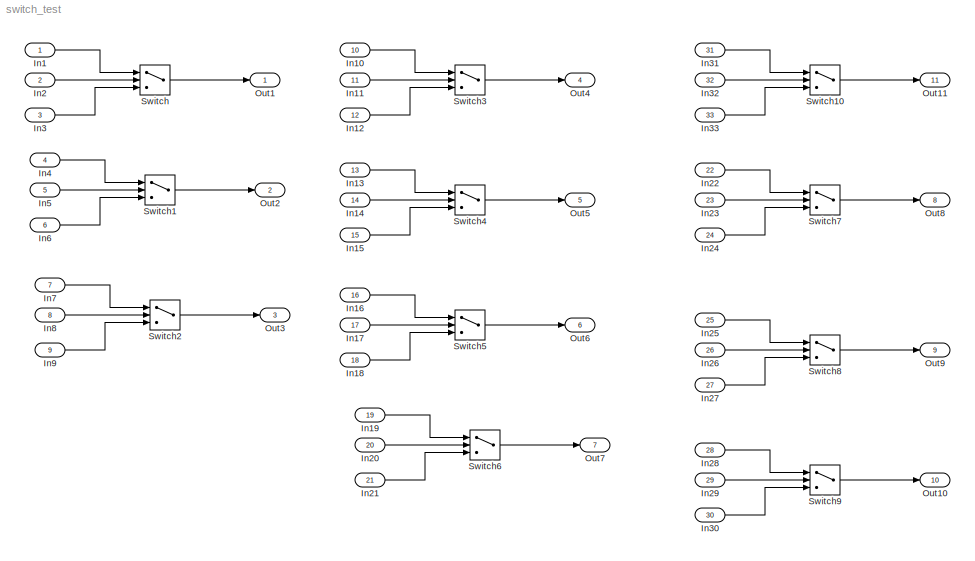
MODEL switch_test
KIND model
BLOCK [Inport] In1
  IconDisplay = Port number
  SID = 1
BLOCK [Inport] In10
  IconDisplay = Port number
  Port = 10
  SID = 10
BLOCK [Inport] In11
  IconDisplay = Port number
  OutDataTypeStr = double
  Port = 11
  SID = 11
BLOCK [Inport] In12
  IconDisplay = Port number
  Port = 12
  SID = 12
BLOCK [Inport] In13
  IconDisplay = Port number
  Port = 13
  PortDimensions = [2]
  SID = 13
BLOCK [Inport] In14
  IconDisplay = Port number
  OutDataTypeStr = double
  Port = 14
  SID = 14
BLOCK [Inport] In15
  IconDisplay = Port number
  Port = 15
  PortDimensions = [2]
  SID = 15
BLOCK [Inport] In16
  IconDisplay = Port number
  Port = 16
  PortDimensions = [2 3]
  SID = 16
BLOCK [Inport] In17
  IconDisplay = Port number
  OutDataTypeStr = int16
  Port = 17
  SID = 17
BLOCK [Inport] In18
  IconDisplay = Port number
  Port = 18
  PortDimensions = [2 3]
  SID = 18
BLOCK [Inport] In19
  IconDisplay = Port number
  Port = 19
  PortDimensions = [2 3]
  SID = 19
BLOCK [Inport] In2
  IconDisplay = Port number
  OutDataTypeStr = int8
  Port = 2
  SID = 2
BLOCK [Inport] In20
  IconDisplay = Port number
  OutDataTypeStr = double
  Port = 20
  SID = 20
BLOCK [Inport] In21
  IconDisplay = Port number
  Port = 21
  PortDimensions = [2 3]
  SID = 21
BLOCK [Inport] In22
  IconDisplay = Port number
  Port = 22
  PortDimensions = [2]
  SID = 36
BLOCK [Inport] In23
  IconDisplay = Port number
  OutDataTypeStr = double
  Port = 23
  PortDimensions = 2
  SID = 37
BLOCK [Inport] In24
  IconDisplay = Port number
  Port = 24
  PortDimensions = [2]
  SID = 38
BLOCK [Inport] In25
  IconDisplay = Port number
  Port = 25
  PortDimensions = [2]
  SID = 41
BLOCK [Inport] In26
  IconDisplay = Port number
  OutDataTypeStr = double
  Port = 26
  PortDimensions = 2
  SID = 42
BLOCK [Inport] In27
  IconDisplay = Port number
  Port = 27
  PortDimensions = [2]
  SID = 43
BLOCK [Inport] In28
  IconDisplay = Port number
  Port = 28
  PortDimensions = [2]
  SID = 46
BLOCK [Inport] In29
  IconDisplay = Port number
  Port = 29
  PortDimensions = 2
  SID = 47
BLOCK [Inport] In3
  IconDisplay = Port number
  Port = 3
  SID = 3
BLOCK [Inport] In30
  IconDisplay = Port number
  Port = 30
  PortDimensions = [2]
  SID = 48
BLOCK [Inport] In31
  IconDisplay = Port number
  Port = 31
  PortDimensions = [2]
  SID = 51
BLOCK [Inport] In32
  IconDisplay = Port number
  Port = 32
  PortDimensions = 2
  SID = 52
BLOCK [Inport] In33
  IconDisplay = Port number
  Port = 33
  PortDimensions = [2]
  SID = 53
BLOCK [Inport] In4
  IconDisplay = Port number
  Port = 4
  PortDimensions = [2]
  SID = 4
BLOCK [Inport] In5
  IconDisplay = Port number
  Port = 5
  SID = 5
BLOCK [Inport] In6
  IconDisplay = Port number
  Port = 6
  PortDimensions = [2]
  SID = 6
BLOCK [Inport] In7
  IconDisplay = Port number
  Port = 7
  PortDimensions = [2 3]
  SID = 7
BLOCK [Inport] In8
  IconDisplay = Port number
  OutDataTypeStr = boolean
  Port = 8
  SID = 8
BLOCK [Inport] In9
  IconDisplay = Port number
  Port = 9
  PortDimensions = [2 3]
  SID = 9
BLOCK [Outport] Out1
  IconDisplay = Port number
  SID = 29
BLOCK [Outport] Out10
  IconDisplay = Port number
  Port = 10
  SID = 50
BLOCK [Outport] Out11
  IconDisplay = Port number
  Port = 11
  SID = 55
BLOCK [Outport] Out2
  IconDisplay = Port number
  Port = 2
  SID = 30
BLOCK [Outport] Out3
  IconDisplay = Port number
  Port = 3
  SID = 31
BLOCK [Outport] Out4
  IconDisplay = Port number
  Port = 4
  SID = 32
BLOCK [Outport] Out5
  IconDisplay = Port number
  Port = 5
  SID = 33
BLOCK [Outport] Out6
  IconDisplay = Port number
  Port = 6
  SID = 34
BLOCK [Outport] Out7
  IconDisplay = Port number
  Port = 7
  SID = 35
BLOCK [Outport] Out8
  IconDisplay = Port number
  Port = 8
  SID = 40
BLOCK [Outport] Out9
  IconDisplay = Port number
  Port = 9
  SID = 45
BLOCK [Switch] Switch
  InputSameDT = off
  SID = 22
  SaturateOnIntegerOverflow = off
  Threshold = 12
BLOCK [Switch] Switch1
  Criteria = u2 > Threshold
  InputSameDT = off
  SID = 23
  SaturateOnIntegerOverflow = off
  Threshold = 2.5
BLOCK [Switch] Switch10
  Criteria = u2 > Threshold
  InputSameDT = off
  SID = 54
  SaturateOnIntegerOverflow = off
  Threshold = [int16(2) int32(6)]
BLOCK [Switch] Switch2
  Criteria = u2 ~= 0
  InputSameDT = off
  SID = 24
  SaturateOnIntegerOverflow = off
BLOCK [Switch] Switch3
  InputSameDT = off
  SID = 25
  SaturateOnIntegerOverflow = off
  Threshold = 12.1
BLOCK [Switch] Switch4
  Criteria = u2 > Threshold
  InputSameDT = off
  SID = 26
  SaturateOnIntegerOverflow = off
  Threshold = 2.5
BLOCK [Switch] Switch5
  Criteria = u2 ~= 0
  InputSameDT = off
  SID = 27
  SaturateOnIntegerOverflow = off
BLOCK [Switch] Switch6
  Criteria = u2 ~= 0
  InputSameDT = off
  SID = 28
  SaturateOnIntegerOverflow = off
BLOCK [Switch] Switch7
  Criteria = u2 > Threshold
  InputSameDT = off
  SID = 39
  SaturateOnIntegerOverflow = off
  Threshold = 2.5
BLOCK [Switch] Switch8
  Criteria = u2 > Threshold
  InputSameDT = off
  SID = 44
  SaturateOnIntegerOverflow = off
  Threshold = [2.5 6.7]
BLOCK [Switch] Switch9
  Criteria = u2 > Threshold
  InputSameDT = off
  SID = 49
  SaturateOnIntegerOverflow = off
  Threshold = [2.5 6.7]
LINE In10:1 -> Switch3:1
LINE In11:1 -> Switch3:2
LINE In12:1 -> Switch3:3
LINE In13:1 -> Switch4:1
LINE In14:1 -> Switch4:2
LINE In15:1 -> Switch4:3
LINE In16:1 -> Switch5:1
LINE In17:1 -> Switch5:2
LINE In18:1 -> Switch5:3
LINE In19:1 -> Switch6:1
LINE In1:1 -> Switch:1
LINE In20:1 -> Switch6:2
LINE In21:1 -> Switch6:3
LINE In22:1 -> Switch7:1
LINE In23:1 -> Switch7:2
LINE In24:1 -> Switch7:3
LINE In25:1 -> Switch8:1
LINE In26:1 -> Switch8:2
LINE In27:1 -> Switch8:3
LINE In28:1 -> Switch9:1
LINE In29:1 -> Switch9:2
LINE In2:1 -> Switch:2
LINE In30:1 -> Switch9:3
LINE In31:1 -> Switch10:1
LINE In32:1 -> Switch10:2
LINE In33:1 -> Switch10:3
LINE In3:1 -> Switch:3
LINE In4:1 -> Switch1:1
LINE In5:1 -> Switch1:2
LINE In6:1 -> Switch1:3
LINE In7:1 -> Switch2:1
LINE In8:1 -> Switch2:2
LINE In9:1 -> Switch2:3
LINE Switch10:1 -> Out11:1
LINE Switch1:1 -> Out2:1
LINE Switch2:1 -> Out3:1
LINE Switch3:1 -> Out4:1
LINE Switch4:1 -> Out5:1
LINE Switch5:1 -> Out6:1
LINE Switch6:1 -> Out7:1
LINE Switch7:1 -> Out8:1
LINE Switch8:1 -> Out9:1
LINE Switch9:1 -> Out10:1
LINE Switch:1 -> Out1:1
